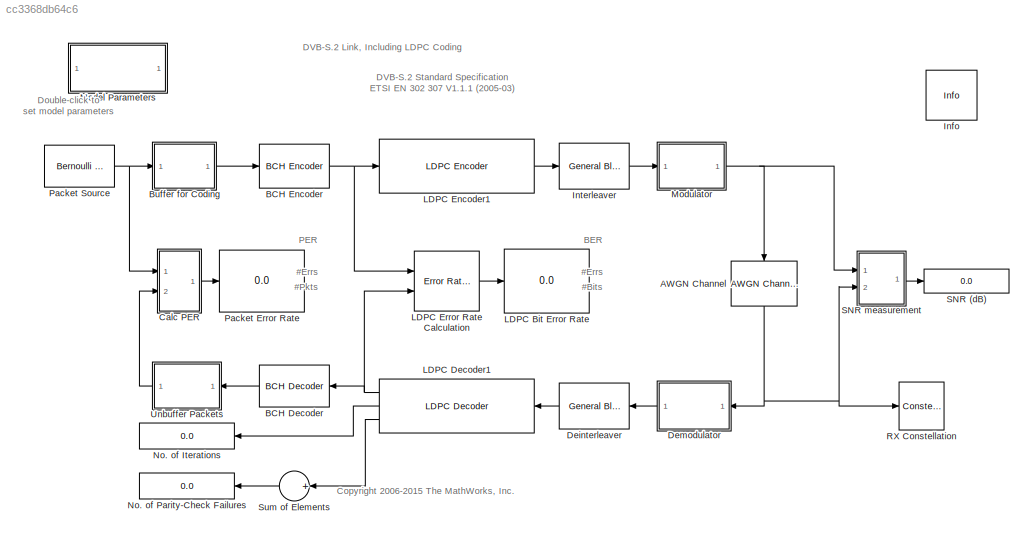
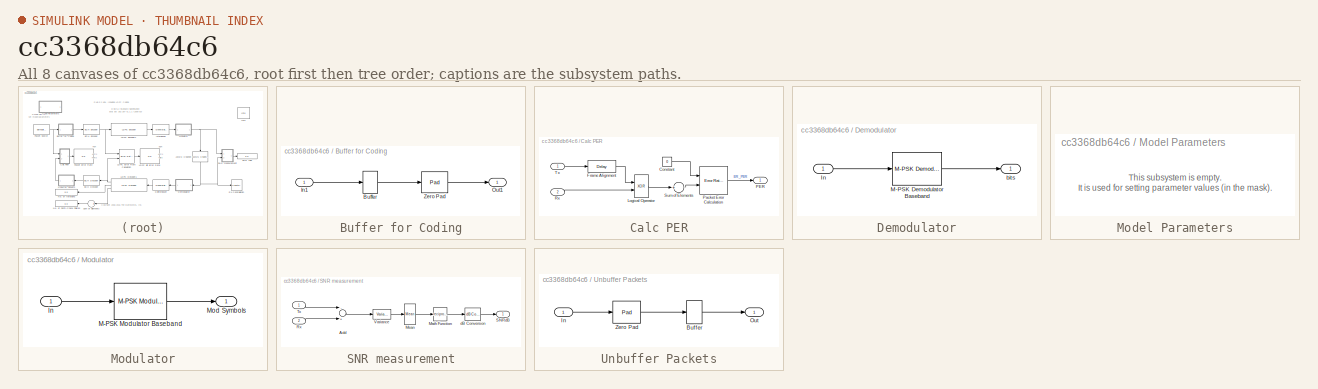
[diagram: thumbnail index - all 8 canvases of the model, root first then tree order]
MODEL slx_cc3368db64c6
KIND model
CONFIG AbsTol = auto
CONFIG EnableMultiTasking = off
CONFIG FixedStep = auto
CONFIG MaxStep = auto
CONFIG MinStep = auto
CONFIG PostLoadFcn = commdvbs2_settings;
CONFIG RelTol = 1e-3
CONFIG SampleTimeConstraint = Unconstrained
CONFIG Solver = FixedStepDiscrete
CONFIG SolverName = FixedStepDiscrete
CONFIG StartTime = 0.0
CONFIG StopTime = 10
BLOCK [Reference] AWGN Channel  REF=commchan3/AWGN
Channel
  Ports = [1, 1]
  SourceBlock = commchan3/AWGN\nChannel
  SourceProductBaseCode = CM
  SourceProductName = Communications System Toolbox
  SourceType = AWGN Channel
  UserDataPersistent = on
BLOCK [Reference] BCH Decoder  REF=commblkcod2/BCH Decoder
  Ports = [1, 1]
  SourceBlock = commblkcod2/BCH Decoder
  SourceProductBaseCode = CM
  SourceProductName = Communications System Toolbox
  SourceType = BCH Decoder
BLOCK [Reference] BCH Encoder  REF=commblkcod2/BCH Encoder
  Ports = [1, 1]
  SourceBlock = commblkcod2/BCH Encoder
  SourceProductBaseCode = CM
  SourceProductName = Communications System Toolbox
  SourceType = BCH Encoder
BLOCK [SubSystem] Buffer for Coding
  Ports = [1, 1]
  RequestExecContextInheritance = off
  Variant = off
BLOCK [Buffer] Buffer for Coding/Buffer
  N = dvb.NumInfoBitsPerCodeword
  OutputFrames = off
BLOCK [Inport] Buffer for Coding/In1
  IconDisplay = Port number
BLOCK [Outport] Buffer for Coding/Out1
  IconDisplay = Port number
BLOCK [Reference] Buffer for Coding/Zero Pad  REF=dspsigops/Pad
  Ports = [1, 1]
  SourceBlock = dspsigops/Pad
  SourceProductBaseCode = DS
  SourceProductName = DSP System Toolbox
  SourceType = Pad
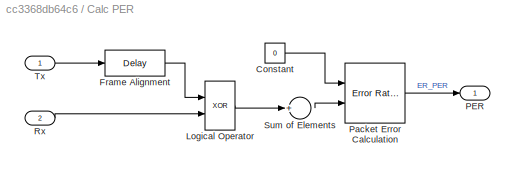
BLOCK [SubSystem] Calc PER
  Ports = [2, 1]
  RequestExecContextInheritance = off
  Variant = off
BLOCK [Constant] Calc PER/Constant
  OutDataTypeStr = double
  Value = 0
BLOCK [Reference] Calc PER/Frame Alignment  REF=dspobslib/Delay
  Ports = [1, 1]
  SourceBlock = dspobslib/Delay
  SourceProductBaseCode = DS
  SourceProductName = DSP System Toolbox
  SourceType = Delay
  UserDataPersistent = on
BLOCK [Logic] Calc PER/Logical Operator
  AllPortsSameDT = off
  Operator = XOR
  OutDataTypeStr = boolean
  Ports = [2, 1]
BLOCK [Outport] Calc PER/PER
  IconDisplay = Port number
BLOCK [Reference] Calc PER/Packet Error Calculation  REF=commsink2/Error Rate
Calculation
  Ports = [2, 1]
  SourceBlock = commsink2/Error Rate\nCalculation
  SourceProductBaseCode = CM
  SourceProductName = Communications System Toolbox
  SourceType = Error Rate Calculation
BLOCK [Inport] Calc PER/Rx
  IconDisplay = Port number
  Port = 2
BLOCK [Sum] Calc PER/Sum of Elements
  InputSameDT = off
  Inputs = +
  OutDataTypeStr = double
  Ports = [1, 1]
  SaturateOnIntegerOverflow = off
BLOCK [Inport] Calc PER/Tx
  IconDisplay = Port number
BLOCK [Reference] Deinterleaver  REF=commblkintrlv2/General Block
Deinterleaver
  Ports = [1, 1]
  SourceBlock = commblkintrlv2/General Block\nDeinterleaver
  SourceProductBaseCode = CM
  SourceProductName = Communications System Toolbox
  SourceType = General Block Deinterleaver
BLOCK [SubSystem] Demodulator
  Ports = [1, 1]
  RequestExecContextInheritance = off
  Variant = off
BLOCK [Inport] Demodulator/In
  IconDisplay = Port number
BLOCK [Reference] Demodulator/M-PSK Demodulator Baseband  REF=commdigbbndpm3/M-PSK
Demodulator
Baseband
  Ports = [1, 1]
  SourceBlock = commdigbbndpm3/M-PSK\nDemodulator\nBaseband
  SourceProductBaseCode = CM
  SourceProductName = Communications System Toolbox
  SourceType = M-PSK Demodulator Baseband
BLOCK [Outport] Demodulator/bits
  IconDisplay = Port number
BLOCK [Reference] Info  REF=commblksprivate/Info
  Ports = []
  SourceBlock = commblksprivate/Info
  SourceProductBaseCode = CM
  SourceProductName = Communications System Toolbox
  SourceType = Info
BLOCK [Reference] Interleaver  REF=commblkintrlv2/General Block
Interleaver
  Ports = [1, 1]
  SourceBlock = commblkintrlv2/General Block\nInterleaver
  SourceProductBaseCode = CM
  SourceProductName = Communications System Toolbox
  SourceType = General Block Interleaver
BLOCK [Display] LDPC Bit Error Rate
  Decimation = 1
  Ports = [1]
BLOCK [Reference] LDPC Decoder1  REF=commblkcod2/LDPC Decoder
  Ports = [1, 3]
  SourceBlock = commblkcod2/LDPC Decoder
  SourceProductBaseCode = CM
  SourceProductName = Communications System Toolbox
  SourceType = LDPC Decoder
BLOCK [Reference] LDPC Encoder1  REF=commblkcod2/LDPC Encoder
  Ports = [1, 1]
  SourceBlock = commblkcod2/LDPC Encoder
  SourceProductBaseCode = CM
  SourceProductName = Communications System Toolbox
  SourceType = LDPC Encoder
BLOCK [Reference] LDPC Error Rate Calculation  REF=commsink2/Error Rate
Calculation
  Ports = [2, 1]
  SourceBlock = commsink2/Error Rate\nCalculation
  SourceProductBaseCode = CM
  SourceProductName = Communications System Toolbox
  SourceType = Error Rate Calculation
BLOCK [SubSystem] Model Parameters
  Ports = []
  RequestExecContextInheritance = off
  Variant = off
BLOCK [SubSystem] Modulator
  Ports = [1, 1]
  RequestExecContextInheritance = off
  Variant = off
BLOCK [Inport] Modulator/In
  IconDisplay = Port number
BLOCK [Reference] Modulator/M-PSK Modulator Baseband  REF=commdigbbndpm3/M-PSK
Modulator
Baseband
  Ports = [1, 1]
  SourceBlock = commdigbbndpm3/M-PSK\nModulator\nBaseband
  SourceProductBaseCode = CM
  SourceProductName = Communications System Toolbox
  SourceType = M-PSK Modulator Baseband
BLOCK [Outport] Modulator/Mod Symbols
  IconDisplay = Port number
BLOCK [Display] No. of Iterations
  Decimation = 1
  Ports = [1]
BLOCK [Display] No. of Parity-Check Failures
  Decimation = 1
  Ports = [1]
BLOCK [Display] Packet Error Rate
  Decimation = 1
  Ports = [1]
BLOCK [Reference] Packet Source  REF=commrandsrc3/Bernoulli Binary
Generator
  Ports = [0, 1]
  SourceBlock = commrandsrc3/Bernoulli Binary\nGenerator
  SourceProductBaseCode = CM
  SourceProductName = Communications System Toolbox
  SourceType = Bernoulli Binary Generator
BLOCK [ConstellationDiagram] RX Constellation
  Ports = [1]
  ScopeSpecificationString = comm.scopes.ConstellationDiagramBlockCfg('CurrentConfiguration', extmgr.ConfigurationSet(extmgr.Configuration('Core','General UI',true),extmgr.Configuration('Core','Source UI',true),extmgr.Configuration('Sources','WiredSimulink',true),extmgr.Configuration('Visuals','Constellation',true,'MinYLim','-1.3767','MaxYLim','1.8374','MinXLim','-1.818','MaxXLim','1.8827','SymbolsToDisplayFromInput',false,'S...<+936ch>
  Tag = ScatterPlot
BLOCK [Display] SNR (dB)
  Decimation = 1
  Ports = [1]
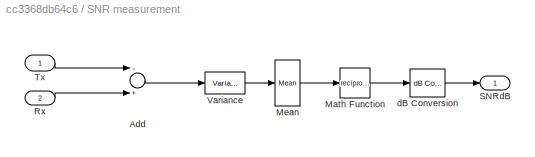
BLOCK [SubSystem] SNR measurement
  Ports = [2, 1]
  RequestExecContextInheritance = off
  Variant = off
BLOCK [Sum] SNR measurement/Add
  InputSameDT = off
  Inputs = -+
  OutDataTypeStr = Inherit: Inherit via internal rule
  Ports = [2, 1]
  SaturateOnIntegerOverflow = off
BLOCK [Math] SNR measurement/Math Function
  Operator = reciprocal
  Ports = [1, 1]
BLOCK [Reference] SNR measurement/Mean  REF=dspstat3/Mean
  Ports = [1, 1]
  SourceBlock = dspstat3/Mean
  SourceProductBaseCode = DS
  SourceProductName = DSP System Toolbox
  SourceType = Mean
  UserDataPersistent = on
BLOCK [Inport] SNR measurement/Rx
  IconDisplay = Port number
  Port = 2
BLOCK [Outport] SNR measurement/SNRdB
  IconDisplay = Port number
BLOCK [Inport] SNR measurement/Tx
  IconDisplay = Port number
BLOCK [Reference] SNR measurement/Variance  REF=dspstat3/Variance
  Ports = [1, 1]
  SourceBlock = dspstat3/Variance
  SourceProductBaseCode = DS
  SourceProductName = DSP System Toolbox
  SourceType = Variance
  UserDataPersistent = on
BLOCK [Reference] SNR measurement/dB Conversion  REF=dspmathops/dB Conversion
  Ports = [1, 1]
  SourceBlock = dspmathops/dB Conversion
  SourceProductBaseCode = DS
  SourceProductName = DSP System Toolbox
  SourceType = dB Conversion
BLOCK [Sum] Sum of Elements
  InputSameDT = off
  Inputs = +
  OutDataTypeStr = Inherit: Inherit via internal rule
  Ports = [1, 1]
  SaturateOnIntegerOverflow = off
BLOCK [SubSystem] Unbuffer Packets
  Ports = [1, 1]
  RequestExecContextInheritance = off
  Variant = off
BLOCK [Buffer] Unbuffer Packets/Buffer
  N = dvb.NumBitsPerPacket
  OutputFrames = off
BLOCK [Inport] Unbuffer Packets/In
  IconDisplay = Port number
BLOCK [Outport] Unbuffer Packets/Out
  IconDisplay = Port number
BLOCK [Reference] Unbuffer Packets/Zero Pad  REF=dspsigops/Pad
  Ports = [1, 1]
  SourceBlock = dspsigops/Pad
  SourceProductBaseCode = DS
  SourceProductName = DSP System Toolbox
  SourceType = Pad
ANNOTATION (root): #Bits
ANNOTATION (root): #Errs
ANNOTATION (root): #Pkts
ANNOTATION (root): BER
ANNOTATION (root): <copyright redacted>
ANNOTATION (root): DVB-S.2 Link, Including LDPC Coding
ANNOTATION (root): DVB-S.2 Standard Specification ETSI EN 302 307 V1.1.1 (2005-03)
ANNOTATION (root): Double-click to set model parameters
ANNOTATION (root): PER
ANNOTATION Model Parameters: This subsystem is empty. It is used for setting parameter values (in the mask).
NET AWGN Channel:1 -> Demodulator:1, RX Constellation:1, SNR measurement:2
LINE BCH Decoder:1 -> Unbuffer Packets:1
NET BCH Encoder:1 -> LDPC Encoder1:1, LDPC Error Rate Calculation:1
LINE Buffer for Coding/Buffer:1 -> Buffer for Coding/Zero Pad:1
LINE Buffer for Coding/In1:1 -> Buffer for Coding/Buffer:1
LINE Buffer for Coding/Zero Pad:1 -> Buffer for Coding/Out1:1
LINE Buffer for Coding:1 -> BCH Encoder:1
LINE Calc PER/Constant:1 -> Calc PER/Packet Error Calculation:1
LINE Calc PER/Frame Alignment:1 -> Calc PER/Logical Operator:1
LINE Calc PER/Logical Operator:1 -> Calc PER/Sum of Elements:1
LINE Calc PER/Packet Error Calculation:1 -> Calc PER/PER:1
LINE Calc PER/Rx:1 -> Calc PER/Logical Operator:2
LINE Calc PER/Sum of Elements:1 -> Calc PER/Packet Error Calculation:2
LINE Calc PER/Tx:1 -> Calc PER/Frame Alignment:1
LINE Calc PER:1 -> Packet Error Rate:1
LINE Deinterleaver:1 -> LDPC Decoder1:1
LINE Demodulator/In:1 -> Demodulator/M-PSK Demodulator Baseband:1
LINE Demodulator/M-PSK Demodulator Baseband:1 -> Demodulator/bits:1
LINE Demodulator:1 -> Deinterleaver:1
LINE Interleaver:1 -> Modulator:1
NET LDPC Decoder1:1 -> BCH Decoder:1, LDPC Error Rate Calculation:2
LINE LDPC Decoder1:2 -> No. of Iterations:1
LINE LDPC Decoder1:3 -> Sum of Elements:1
LINE LDPC Encoder1:1 -> Interleaver:1
LINE LDPC Error Rate Calculation:1 -> LDPC Bit Error Rate:1
LINE Modulator/In:1 -> Modulator/M-PSK Modulator Baseband:1
LINE Modulator/M-PSK Modulator Baseband:1 -> Modulator/Mod Symbols:1
NET Modulator:1 -> AWGN Channel:1, SNR measurement:1
NET Packet Source:1 -> Buffer for Coding:1, Calc PER:1
LINE SNR measurement/Add:1 -> SNR measurement/Variance:1
LINE SNR measurement/Math Function:1 -> SNR measurement/dB Conversion:1
LINE SNR measurement/Mean:1 -> SNR measurement/Math Function:1
LINE SNR measurement/Rx:1 -> SNR measurement/Add:2
LINE SNR measurement/Tx:1 -> SNR measurement/Add:1
LINE SNR measurement/Variance:1 -> SNR measurement/Mean:1
LINE SNR measurement/dB Conversion:1 -> SNR measurement/SNRdB:1
LINE SNR measurement:1 -> SNR (dB):1
LINE Sum of Elements:1 -> No. of Parity-Check Failures:1
LINE Unbuffer Packets/Buffer:1 -> Unbuffer Packets/Out:1
LINE Unbuffer Packets/In:1 -> Unbuffer Packets/Zero Pad:1
LINE Unbuffer Packets/Zero Pad:1 -> Unbuffer Packets/Buffer:1
LINE Unbuffer Packets:1 -> Calc PER:2
note: NET lines group one-source signal fan-out (src -> all destinations, sorted); 1:1 wires keep LINE
